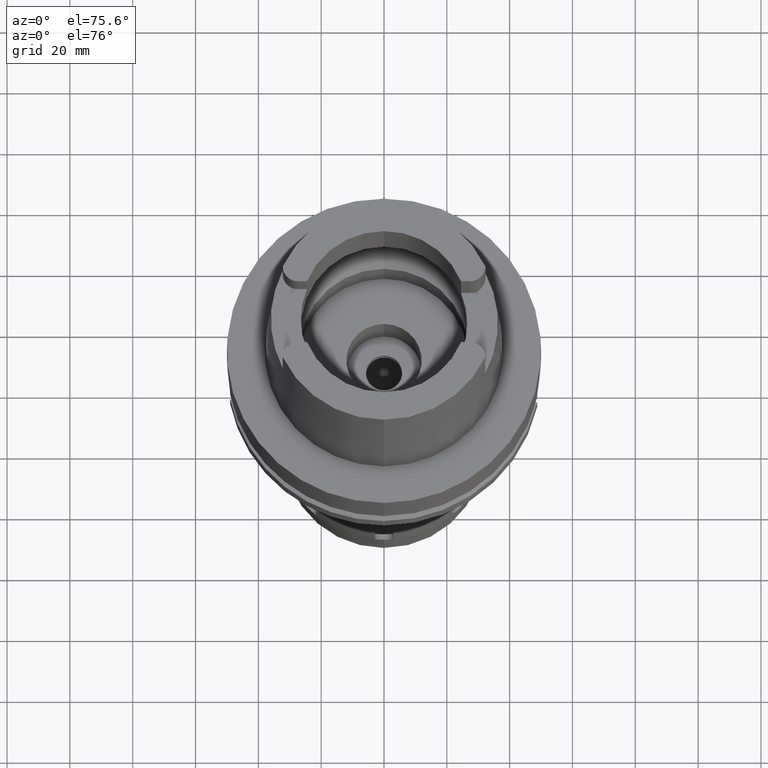
[diagram: clean part render]
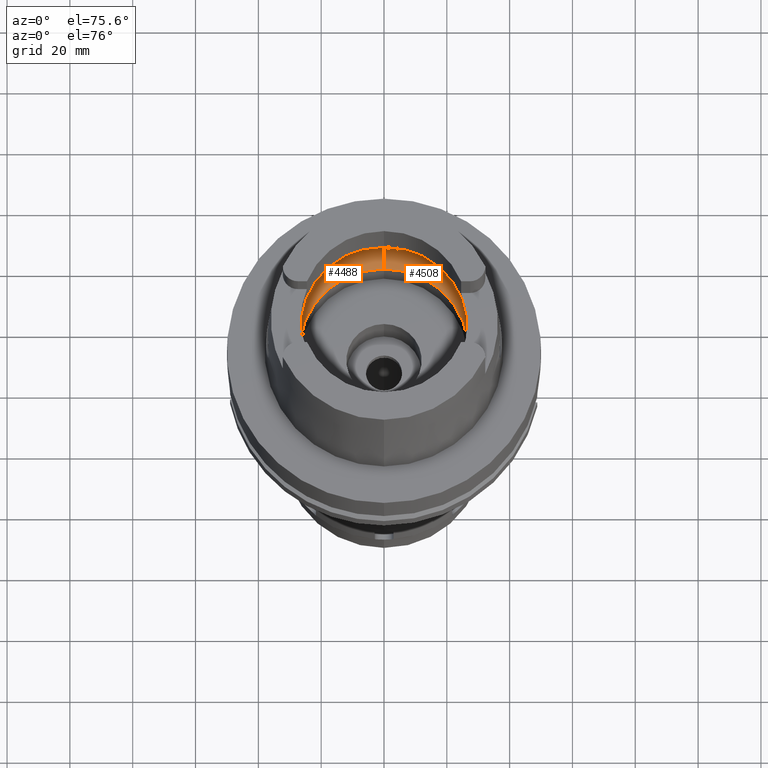
[diagram: same view with one multi-face feature highlighted, each face labeled with its STEP entity id]
A machine part, auxiliary view. The highlighted faces form ONE feature: a constant-radius fillet chain: 2 tangent blend faces with common blend radius 12 mm. The faces share edges in the B-rep.
Their STEP definitions:
[1] entity #4488 (Torus):
#558=CARTESIAN_POINT('',(-3.140918884336E1,-2.390158196044E0,9.496624327026E0));
#602=CARTESIAN_POINT('',(-3.140918884336E1,-2.390158196044E0,9.496624327026E0));
#603=CARTESIAN_POINT('',(-3.142817545704E1,-2.140654152533E0,9.388262810390E0));
#604=CARTESIAN_POINT('',(-3.145843235401E1,-1.626121130666E0,9.205188134635E0));
#605=CARTESIAN_POINT('',(-3.148416659375E1,-8.216262390445E-1,
9.037606438216E0));
#606=CARTESIAN_POINT('',(-3.148971910754E1,-2.740811097498E-1,9.E0));
#607=CARTESIAN_POINT('',(-3.148971910754E1,0.E0,9.E0));
#612=CARTESIAN_POINT('',(-3.148971910754E1,0.E0,9.E0));
#613=CARTESIAN_POINT('',(-3.148971910754E1,2.740813517952E-1,9.E0));
#614=CARTESIAN_POINT('',(-3.148416661469E1,8.216269012394E-1,9.037606318337E0));
#615=CARTESIAN_POINT('',(-3.145843209623E1,1.626127188331E0,9.205189758010E0));
#616=CARTESIAN_POINT('',(-3.142817526839E1,2.140656631637E0,9.388263887083E0));
#617=CARTESIAN_POINT('',(-3.140918884336E1,2.390158196044E0,9.496624327026E0));
#622=CARTESIAN_POINT('',(0.E0,0.E0,9.496624327026E0));
#623=DIRECTION('',(0.E0,0.E0,-1.E0));
#624=DIRECTION('',(-9.971171061384E-1,7.587803796965E-2,0.E0));
#625=AXIS2_PLACEMENT_3D('',#622,#623,#624);
#630=CARTESIAN_POINT('',(0.E0,0.E0,4.993178413027E-2));
#631=DIRECTION('',(0.E0,0.E0,1.E0));
#632=DIRECTION('',(0.E0,1.E0,0.E0));
#633=AXIS2_PLACEMENT_3D('',#630,#631,#632);
#638=CARTESIAN_POINT('',(0.E0,-1.95E1,9.496624327026E0));
#639=DIRECTION('',(-1.E0,0.E0,0.E0));
#640=DIRECTION('',(0.E0,-6.166666666667E-1,-7.872243785746E-1));
#641=AXIS2_PLACEMENT_3D('',#638,#639,#640);
#646=CARTESIAN_POINT('',(0.E0,0.E0,9.496624327026E0));
#647=DIRECTION('',(0.E0,0.E0,-1.E0));
#648=DIRECTION('',(0.E0,-1.E0,0.E0));
#649=AXIS2_PLACEMENT_3D('',#646,#647,#648);
#680=CARTESIAN_POINT('',(0.E0,1.95E1,9.496624327026E0));
#681=DIRECTION('',(1.E0,0.E0,0.E0));
#682=DIRECTION('',(0.E0,6.166666666667E-1,-7.872243785746E-1));
#683=AXIS2_PLACEMENT_3D('',#680,#681,#682);
#3660=VERTEX_POINT('',#558);
#3661=CARTESIAN_POINT('',(0.E0,-3.15E1,9.496624327026E0));
#3662=VERTEX_POINT('',#3661);
#3663=CARTESIAN_POINT('',(0.E0,3.15E1,9.496624327026E0));
#3664=VERTEX_POINT('',#3663);
#3665=CARTESIAN_POINT('',(-3.140918884336E1,2.390158196044E0,9.496624327026E0));
#3666=VERTEX_POINT('',#3665);
#3667=CARTESIAN_POINT('',(-3.148971910754E1,0.E0,9.E0));
#3668=VERTEX_POINT('',#3667);
#3673=CARTESIAN_POINT('',(0.E0,2.69E1,4.993178413027E-2));
#3674=VERTEX_POINT('',#3673);
#3675=CARTESIAN_POINT('',(0.E0,-2.69E1,4.993178413027E-2));
#3676=VERTEX_POINT('',#3675);
#4471=CARTESIAN_POINT('',(0.E0,0.E0,9.496624327026E0));
#4472=DIRECTION('',(0.E0,0.E0,1.E0));
#4473=DIRECTION('',(0.E0,1.E0,0.E0));
#4474=AXIS2_PLACEMENT_3D('',#4471,#4472,#4473);
#4475=TOROIDAL_SURFACE('',#4474,1.95E1,1.2E1);
#4476=ORIENTED_EDGE('',*,*,#4452,.T.);
#4477=ORIENTED_EDGE('',*,*,#4463,.T.);
#4478=ORIENTED_EDGE('',*,*,#4434,.T.);
#4480=ORIENTED_EDGE('',*,*,#4479,.F.);
#4482=ORIENTED_EDGE('',*,*,#4481,.T.);
#4484=ORIENTED_EDGE('',*,*,#4483,.T.);
#4485=ORIENTED_EDGE('',*,*,#4427,.T.);
#4486=EDGE_LOOP('',(#4476,#4477,#4478,#4480,#4482,#4484,#4485));
#4487=FACE_OUTER_BOUND('',#4486,.F.);
#608=B_SPLINE_CURVE_WITH_KNOTS('',3,(#602,#603,#604,#605,#606,#607),
.UNSPECIFIED.,.F.,.F.,(4,1,1,4),(0.E0,3.333333333333E-1,6.666666666667E-1,1.E0),
.UNSPECIFIED.);
#618=B_SPLINE_CURVE_WITH_KNOTS('',3,(#612,#613,#614,#615,#616,#617),
.UNSPECIFIED.,.F.,.F.,(4,1,1,4),(0.E0,3.333333333333E-1,6.666666666667E-1,1.E0),
.UNSPECIFIED.);
#626=CIRCLE('',#625,3.15E1);
#634=CIRCLE('',#633,2.69E1);
#642=CIRCLE('',#641,1.2E1);
#650=CIRCLE('',#649,3.15E1);
#684=CIRCLE('',#683,1.2E1);
#4427=EDGE_CURVE('',#3662,#3660,#650,.T.);
#4434=EDGE_CURVE('',#3666,#3664,#626,.T.);
#4452=EDGE_CURVE('',#3660,#3668,#608,.T.);
#4463=EDGE_CURVE('',#3668,#3666,#618,.T.);
#4479=EDGE_CURVE('',#3674,#3664,#684,.T.);
#4481=EDGE_CURVE('',#3674,#3676,#634,.T.);
#4483=EDGE_CURVE('',#3676,#3662,#642,.T.);
#4488=ADVANCED_FACE('',(#4487),#4475,.F.);
[2] entity #4508 (Torus):
#638=CARTESIAN_POINT('',(0.E0,-1.95E1,9.496624327026E0));
#639=DIRECTION('',(-1.E0,0.E0,0.E0));
#640=DIRECTION('',(0.E0,-6.166666666667E-1,-7.872243785746E-1));
#641=AXIS2_PLACEMENT_3D('',#638,#639,#640);
#654=CARTESIAN_POINT('',(3.148971910754E1,0.E0,9.E0));
#655=CARTESIAN_POINT('',(3.148971910754E1,-2.740816369241E-1,9.E0));
#656=CARTESIAN_POINT('',(3.148416657244E1,-8.216274657312E-1,9.037606582852E0));
#657=CARTESIAN_POINT('',(3.145843229729E1,-1.626122314408E0,9.205188491873E0));
#658=CARTESIAN_POINT('',(3.142817542026E1,-2.140654635827E0,9.388263020288E0));
#659=CARTESIAN_POINT('',(3.140918884336E1,-2.390158196044E0,9.496624327026E0));
#664=CARTESIAN_POINT('',(0.E0,0.E0,9.496624327026E0));
#665=DIRECTION('',(0.E0,0.E0,-1.E0));
#666=DIRECTION('',(9.971171061384E-1,-7.587803796965E-2,0.E0));
#667=AXIS2_PLACEMENT_3D('',#664,#665,#666);
#672=CARTESIAN_POINT('',(0.E0,0.E0,4.993178413027E-2));
#673=DIRECTION('',(0.E0,0.E0,1.E0));
#674=DIRECTION('',(0.E0,-1.E0,0.E0));
#675=AXIS2_PLACEMENT_3D('',#672,#673,#674);
#680=CARTESIAN_POINT('',(0.E0,1.95E1,9.496624327026E0));
#681=DIRECTION('',(1.E0,0.E0,0.E0));
#682=DIRECTION('',(0.E0,6.166666666667E-1,-7.872243785746E-1));
#683=AXIS2_PLACEMENT_3D('',#680,#681,#682);
#688=CARTESIAN_POINT('',(0.E0,0.E0,9.496624327026E0));
#689=DIRECTION('',(0.E0,0.E0,-1.E0));
#690=DIRECTION('',(0.E0,1.E0,0.E0));
#691=AXIS2_PLACEMENT_3D('',#688,#689,#690);
#696=CARTESIAN_POINT('',(3.140918884336E1,2.390158196044E0,9.496624327026E0));
#697=CARTESIAN_POINT('',(3.142817530553E1,2.140656143518E0,9.388263675090E0));
#698=CARTESIAN_POINT('',(3.145843215351E1,1.626125992770E0,9.205189397203E0));
#699=CARTESIAN_POINT('',(3.148416663622E1,8.216256622719E-1,9.037606172252E0));
#700=CARTESIAN_POINT('',(3.148971910754E1,2.740808193429E-1,9.E0));
#701=CARTESIAN_POINT('',(3.148971910754E1,0.E0,9.E0));
#713=CARTESIAN_POINT('',(3.140918884336E1,-2.390158196044E0,9.496624327026E0));
#744=CARTESIAN_POINT('',(3.140918884336E1,2.390158196044E0,9.496624327026E0));
#3661=CARTESIAN_POINT('',(0.E0,-3.15E1,9.496624327026E0));
#3662=VERTEX_POINT('',#3661);
#3663=CARTESIAN_POINT('',(0.E0,3.15E1,9.496624327026E0));
#3664=VERTEX_POINT('',#3663);
#3669=VERTEX_POINT('',#713);
#3671=VERTEX_POINT('',#654);
#3672=VERTEX_POINT('',#744);
#3673=CARTESIAN_POINT('',(0.E0,2.69E1,4.993178413027E-2));
#3674=VERTEX_POINT('',#3673);
#3675=CARTESIAN_POINT('',(0.E0,-2.69E1,4.993178413027E-2));
#3676=VERTEX_POINT('',#3675);
#4489=CARTESIAN_POINT('',(0.E0,0.E0,9.496624327026E0));
#4490=DIRECTION('',(0.E0,0.E0,1.E0));
#4491=DIRECTION('',(0.E0,1.E0,0.E0));
#4492=AXIS2_PLACEMENT_3D('',#4489,#4490,#4491);
#4493=TOROIDAL_SURFACE('',#4492,1.95E1,1.2E1);
#4495=ORIENTED_EDGE('',*,*,#4494,.T.);
#4497=ORIENTED_EDGE('',*,*,#4496,.T.);
#4498=ORIENTED_EDGE('',*,*,#4483,.F.);
#4500=ORIENTED_EDGE('',*,*,#4499,.T.);
#4501=ORIENTED_EDGE('',*,*,#4479,.T.);
#4503=ORIENTED_EDGE('',*,*,#4502,.T.);
#4505=ORIENTED_EDGE('',*,*,#4504,.T.);
#4506=EDGE_LOOP('',(#4495,#4497,#4498,#4500,#4501,#4503,#4505));
#4507=FACE_OUTER_BOUND('',#4506,.F.);
#642=CIRCLE('',#641,1.2E1);
#660=B_SPLINE_CURVE_WITH_KNOTS('',3,(#654,#655,#656,#657,#658,#659),
.UNSPECIFIED.,.F.,.F.,(4,1,1,4),(0.E0,3.333333333333E-1,6.666666666667E-1,1.E0),
.UNSPECIFIED.);
#668=CIRCLE('',#667,3.15E1);
#676=CIRCLE('',#675,2.69E1);
#684=CIRCLE('',#683,1.2E1);
#692=CIRCLE('',#691,3.15E1);
#702=B_SPLINE_CURVE_WITH_KNOTS('',3,(#696,#697,#698,#699,#700,#701),
.UNSPECIFIED.,.F.,.F.,(4,1,1,4),(0.E0,3.333333333333E-1,6.666666666667E-1,1.E0),
.UNSPECIFIED.);
#4479=EDGE_CURVE('',#3674,#3664,#684,.T.);
#4483=EDGE_CURVE('',#3676,#3662,#642,.T.);
#4494=EDGE_CURVE('',#3671,#3669,#660,.T.);
#4496=EDGE_CURVE('',#3669,#3662,#668,.T.);
#4499=EDGE_CURVE('',#3676,#3674,#676,.T.);
#4502=EDGE_CURVE('',#3664,#3672,#692,.T.);
#4504=EDGE_CURVE('',#3672,#3671,#702,.T.);
#4508=ADVANCED_FACE('',(#4507),#4493,.F.);